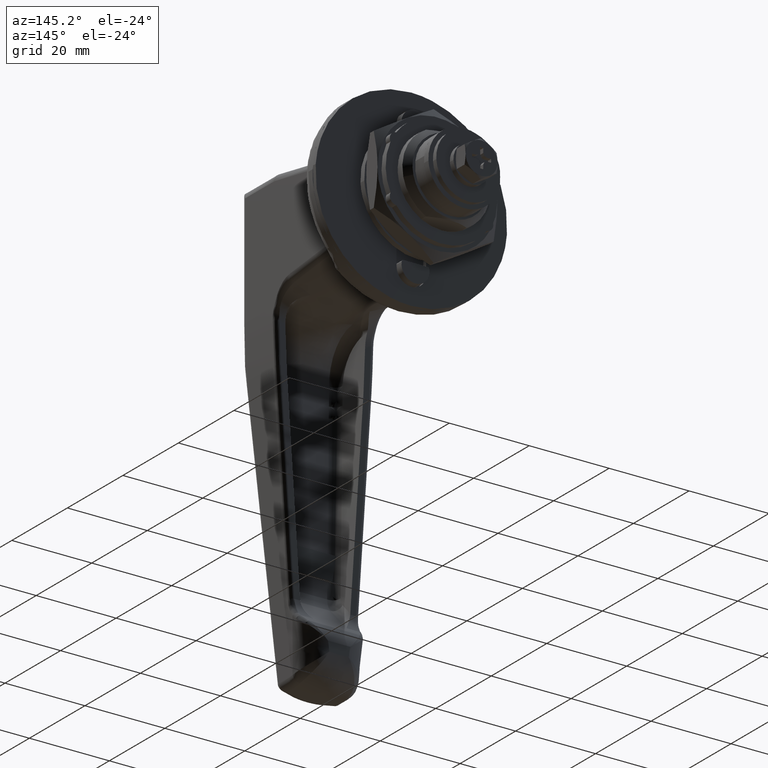
[diagram: clean part render]
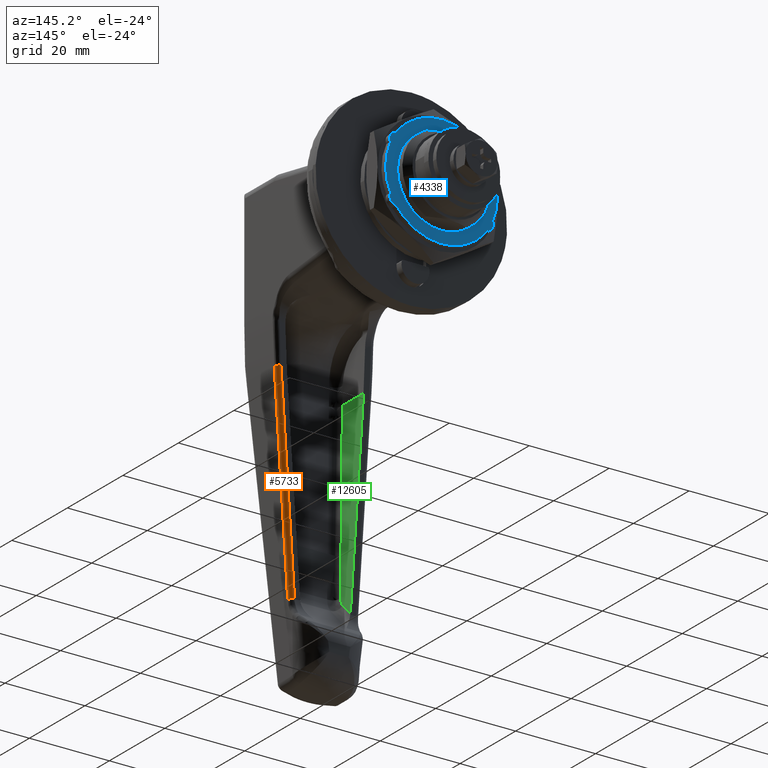
[diagram: same view with three faces highlighted in distinct colors, each labeled with its STEP entity id]
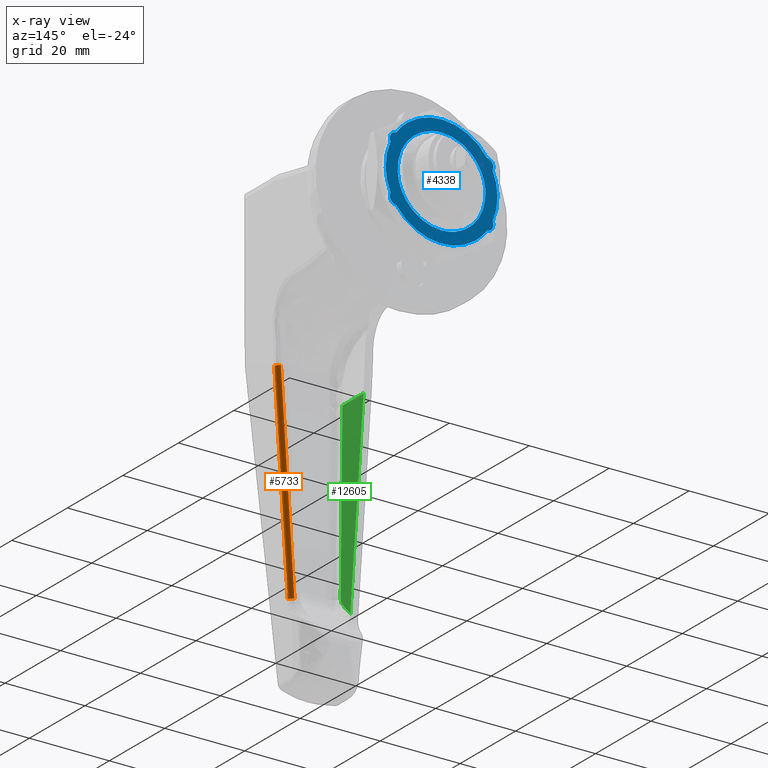
[diagram: x-ray of the same camera — body ghosted, the three highlighted faces saturated]
A machine part, auxiliary view with three faces highlighted in distinct colors.
The next image is the same camera in x-ray (body ghosted, the three faces saturated) — at least one of them is partly hidden behind the body in this view.
Their STEP definitions:

[orange] entity #5733 — the highlighted face is a freeform B-spline surface patch.
#5642=CARTESIAN_POINT('',(-32.0,-12.073825860416800,-28.897928022205701));
#5643=VERTEX_POINT('',#5642);
#5644=CARTESIAN_POINT('',(-31.0,-11.075956731114699,-28.832680794020099));
#5645=VERTEX_POINT('',#5644);
#5646=CARTESIAN_POINT('',(-32.0,-12.073825860416781,-28.897928022205679));
#5647=CARTESIAN_POINT('',(-31.000000000000007,-12.073825860416784,-28.897928022205676));
#5648=CARTESIAN_POINT('',(-31.0,-11.075956731114699,-28.832680794020099));
#5656=(BOUNDED_CURVE()B_SPLINE_CURVE(2,(#5646,#5647,#5648),.UNSPECIFIED.,.F.,.U.)CURVE()GEOMETRIC_REPRESENTATION_ITEM()QUASI_UNIFORM_CURVE()RATIONAL_B_SPLINE_CURVE((1.0,0.707106781186548,1.0))REPRESENTATION_ITEM(''));
#5657=EDGE_CURVE('',#5643,#5645,#5656,.T.);
#5689=CARTESIAN_POINT('',(-32.043619387365332,-12.157358873216159,-27.605815000508532));
#5690=CARTESIAN_POINT('',(-32.043619387365332,-8.606970753906326,-81.904254946856440));
#5691=CARTESIAN_POINT('',(-30.923939205324430,-12.206140995351797,-27.609004695590698));
#5692=CARTESIAN_POINT('',(-30.923939205324430,-8.655752876041969,-81.907444641938611));
#5693=CARTESIAN_POINT('',(-31.002457119729311,-11.090530218580836,-27.536058746286535));
#5694=CARTESIAN_POINT('',(-31.002457119729311,-7.540142099271001,-81.834498692634440));
#5702=(BOUNDED_SURFACE()B_SPLINE_SURFACE(1,2,((#5689,#5691,#5693),(#5690,#5692,#5694)),.UNSPECIFIED.,.F.,.F.,.U.)B_SPLINE_SURFACE_WITH_KNOTS((2,2),(3,3),(0.0,54.414389975491659),(0.0,0.994386907876469),.UNSPECIFIED.)GEOMETRIC_REPRESENTATION_ITEM()RATIONAL_B_SPLINE_SURFACE(((1.0,0.664513792965735,0.996233770027485),(1.0,0.664513792965735,0.996233770027485)))REPRESENTATION_ITEM('')SURFACE());
#5703=CARTESIAN_POINT('',(-32.0,-8.694515336386020,-80.579964853946592));
#5704=VERTEX_POINT('',#5703);
#5705=CARTESIAN_POINT('',(-31.0,-7.696646207083940,-80.514717625761094));
#5706=VERTEX_POINT('',#5705);
#5707=CARTESIAN_POINT('',(-32.0,-8.694515336386015,-80.579964853946663));
#5708=CARTESIAN_POINT('',(-31.000000000000007,-8.694515336386015,-80.579964853946663));
#5709=CARTESIAN_POINT('',(-31.0,-7.696646207083930,-80.514717625761094));
#5717=(BOUNDED_CURVE()B_SPLINE_CURVE(2,(#5707,#5708,#5709),.UNSPECIFIED.,.F.,.U.)CURVE()GEOMETRIC_REPRESENTATION_ITEM()QUASI_UNIFORM_CURVE()RATIONAL_B_SPLINE_CURVE((1.0,0.707106781186548,1.0))REPRESENTATION_ITEM(''));
#5718=EDGE_CURVE('',#5704,#5706,#5717,.T.);
#5719=ORIENTED_EDGE('',*,*,#5718,.T.);
#5720=CARTESIAN_POINT('',(-31.0,-11.075956731114699,-28.832680794020099));
#5721=CARTESIAN_POINT('',(-31.0,-7.696646207083940,-80.514717625761094));
#5722=QUASI_UNIFORM_CURVE('',1,(#5720,#5721),.UNSPECIFIED.,.F.,.U.);
#5723=EDGE_CURVE('',#5645,#5706,#5722,.T.);
#5724=ORIENTED_EDGE('',*,*,#5723,.F.);
#5725=ORIENTED_EDGE('',*,*,#5657,.F.);
#5726=CARTESIAN_POINT('',(-32.0,-8.694515336386020,-80.579964853946592));
#5727=CARTESIAN_POINT('',(-32.0,-12.073825860416800,-28.897928022205701));
#5728=QUASI_UNIFORM_CURVE('',1,(#5726,#5727),.UNSPECIFIED.,.F.,.U.);
#5729=EDGE_CURVE('',#5704,#5643,#5728,.T.);
#5730=ORIENTED_EDGE('',*,*,#5729,.F.);
#5731=EDGE_LOOP('',(#5719,#5724,#5725,#5730));
#5732=FACE_OUTER_BOUND('',#5731,.T.);
#5733=ADVANCED_FACE('',(#5732),#5702,.T.);

[blue] entity #4338 — the highlighted face is a freeform B-spline surface patch.
#3033=CARTESIAN_POINT('',(60.395902999999898,-10.979482782625659,-0.671533935126584));
#3034=VERTEX_POINT('',#3033);
#3040=CARTESIAN_POINT('',(60.395902999999898,0.0,-11.0));
#3041=VERTEX_POINT('',#3040);
#3042=CARTESIAN_POINT('',(60.395902999999898,0.0,-11.0));
#3043=CARTESIAN_POINT('',(60.395902999999912,-10.347766735503505,-11.000000000000002));
#3044=CARTESIAN_POINT('',(60.395902999999905,-10.979482782625665,-0.671533935126584));
#3052=(BOUNDED_CURVE()B_SPLINE_CURVE(2,(#3042,#3043,#3044),.UNSPECIFIED.,.F.,.U.)B_SPLINE_CURVE_WITH_KNOTS((3,3),(0.500000000000000,0.739332962234327),.UNSPECIFIED.)CURVE()GEOMETRIC_REPRESENTATION_ITEM()RATIONAL_B_SPLINE_CURVE((1.0,0.719603993292119,0.976072041656824))REPRESENTATION_ITEM(''));
#3053=EDGE_CURVE('',#3041,#3034,#3052,.T.);
#3055=CARTESIAN_POINT('',(60.395902999999898,10.923104789976360,1.298376581425998));
#3056=VERTEX_POINT('',#3055);
#3057=CARTESIAN_POINT('',(60.395902999999898,10.923104789976360,1.298376581425998));
#3058=CARTESIAN_POINT('',(60.395902999999898,11.000000000000005,0.651465316374798));
#3059=CARTESIAN_POINT('',(60.395902999999898,11.0,0.0));
#3060=CARTESIAN_POINT('',(60.395902999999898,11.0,-11.0));
#3061=CARTESIAN_POINT('',(60.395902999999898,0.0,-11.0));
#3069=(BOUNDED_CURVE()B_SPLINE_CURVE(2,(#3057,#3058,#3059,#3060,#3061),.UNSPECIFIED.,.F.,.U.)B_SPLINE_CURVE_WITH_KNOTS((3,2,3),(0.229562473509404,0.250000000000000,0.500000000000000),.UNSPECIFIED.)CURVE()GEOMETRIC_REPRESENTATION_ITEM()RATIONAL_B_SPLINE_CURVE((0.956026754175655,0.976055948326337,1.0,0.707106781186548,1.0))REPRESENTATION_ITEM(''));
#3070=EDGE_CURVE('',#3056,#3041,#3069,.T.);
#3114=CARTESIAN_POINT('',(60.395902999999898,0.0,11.0));
#3115=VERTEX_POINT('',#3114);
#3116=CARTESIAN_POINT('',(60.395902999999898,0.0,11.0));
#3117=CARTESIAN_POINT('',(60.395902999999905,9.769919785101777,11.0));
#3118=CARTESIAN_POINT('',(60.395902999999898,10.923104789976360,1.298376581425998));
#3126=(BOUNDED_CURVE()B_SPLINE_CURVE(2,(#3116,#3117,#3118),.UNSPECIFIED.,.F.,.U.)B_SPLINE_CURVE_WITH_KNOTS((3,3),(0.0,0.229562473509404),.UNSPECIFIED.)CURVE()GEOMETRIC_REPRESENTATION_ITEM()RATIONAL_B_SPLINE_CURVE((1.0,0.731050832860211,0.956026754175655))REPRESENTATION_ITEM(''));
#3127=EDGE_CURVE('',#3115,#3056,#3126,.T.);
#3129=CARTESIAN_POINT('',(60.395902999999890,-10.979482782625666,-0.671533935126584));
#3130=CARTESIAN_POINT('',(60.395902999999898,-11.000000000000004,-0.336080396528318));
#3131=CARTESIAN_POINT('',(60.395902999999898,-11.0,0.0));
#3132=CARTESIAN_POINT('',(60.395902999999898,-11.0,11.0));
#3133=CARTESIAN_POINT('',(60.395902999999898,0.0,11.0));
#3141=(BOUNDED_CURVE()B_SPLINE_CURVE(2,(#3129,#3130,#3131,#3132,#3133),.UNSPECIFIED.,.F.,.U.)B_SPLINE_CURVE_WITH_KNOTS((3,2,3),(0.739332962234326,0.750000000000000,1.0),.UNSPECIFIED.)CURVE()GEOMETRIC_REPRESENTATION_ITEM()RATIONAL_B_SPLINE_CURVE((0.976072041656822,0.987502787894428,1.0,0.707106781186548,1.0))REPRESENTATION_ITEM(''));
#3142=EDGE_CURVE('',#3034,#3115,#3141,.T.);
#3410=CARTESIAN_POINT('',(60.395902999999898,-12.773809982891500,5.729727047433930));
#3411=VERTEX_POINT('',#3410);
#3417=CARTESIAN_POINT('',(60.395902999999898,-11.348994046675420,8.197580640393969));
#3418=VERTEX_POINT('',#3417);
#3419=CARTESIAN_POINT('',(60.395902999999898,-11.348994046675420,8.197580640393980));
#3420=CARTESIAN_POINT('',(60.395902999999898,-12.269609458662067,8.148412596946514));
#3421=CARTESIAN_POINT('',(60.395902999999898,-12.730573186433530,7.350000000000032));
#3422=CARTESIAN_POINT('',(60.395902999999898,-13.191536914204997,6.551587403053548));
#3423=CARTESIAN_POINT('',(60.395902999999898,-12.773809982891590,5.729727047433887));
#3431=(BOUNDED_CURVE()B_SPLINE_CURVE(2,(#3419,#3420,#3421,#3422,#3423),.UNSPECIFIED.,.F.,.U.)B_SPLINE_CURVE_WITH_KNOTS((3,2,3),(0.0,0.500000000000000,1.0),.UNSPECIFIED.)CURVE()GEOMETRIC_REPRESENTATION_ITEM()RATIONAL_B_SPLINE_CURVE((1.0,0.879054921630884,1.0,0.879054921630884,1.0))REPRESENTATION_ITEM(''));
#3432=EDGE_CURVE('',#3418,#3411,#3431,.T.);
#3457=CARTESIAN_POINT('',(60.395902999999898,-12.773810244207160,-5.729727030582530));
#3458=VERTEX_POINT('',#3457);
#3464=CARTESIAN_POINT('',(60.395902999999898,-12.773809982891500,5.729727047433930));
#3465=CARTESIAN_POINT('',(60.395902999999905,-15.343894784484002,0.000000067032631));
#3466=CARTESIAN_POINT('',(60.395902999999898,-12.773810244207169,-5.729727030582525));
#3474=(BOUNDED_CURVE()B_SPLINE_CURVE(2,(#3464,#3465,#3466),.UNSPECIFIED.,.F.,.U.)CURVE()GEOMETRIC_REPRESENTATION_ITEM()QUASI_UNIFORM_CURVE()RATIONAL_B_SPLINE_CURVE((1.0,0.912415015655414,1.0))REPRESENTATION_ITEM(''));
#3475=EDGE_CURVE('',#3411,#3458,#3474,.T.);
#3496=CARTESIAN_POINT('',(60.395902999999898,-11.348994046675420,-8.197580640393980));
#3497=VERTEX_POINT('',#3496);
#3503=CARTESIAN_POINT('',(60.395902999999898,-12.773810244207160,-5.729727030582530));
#3504=CARTESIAN_POINT('',(60.395902999999898,-13.191536895913377,-6.551587490799718));
#3505=CARTESIAN_POINT('',(60.395902999999898,-12.730573160588470,-7.350000044764986));
#3506=CARTESIAN_POINT('',(60.395902999999898,-12.269609425263557,-8.148412598730255));
#3507=CARTESIAN_POINT('',(60.395902999999898,-11.348994046675420,-8.197580640393980));
#3515=(BOUNDED_CURVE()B_SPLINE_CURVE(2,(#3503,#3504,#3505,#3506,#3507),.UNSPECIFIED.,.F.,.U.)B_SPLINE_CURVE_WITH_KNOTS((3,2,3),(0.0,0.500000000000000,1.0),.UNSPECIFIED.)CURVE()GEOMETRIC_REPRESENTATION_ITEM()RATIONAL_B_SPLINE_CURVE((1.0,0.879054928878454,1.0,0.879054928878454,1.0))REPRESENTATION_ITEM(''));
#3516=EDGE_CURVE('',#3458,#3497,#3515,.T.);
#3537=CARTESIAN_POINT('',(60.395902999999898,11.348994287338440,-8.197580659314040));
#3538=VERTEX_POINT('',#3537);
#3544=CARTESIAN_POINT('',(60.395902999999898,-11.348994046675420,-8.197580640393980));
#3545=CARTESIAN_POINT('',(60.395902999999905,-7.157803374540727,-14.000000032102946));
#3546=CARTESIAN_POINT('',(60.395902999999898,0.000000062790389,-14.0));
#3547=CARTESIAN_POINT('',(60.395902999999905,7.157803500121501,-13.999999967897057));
#3548=CARTESIAN_POINT('',(60.395902999999898,11.348994287338440,-8.197580659314035));
#3556=(BOUNDED_CURVE()B_SPLINE_CURVE(2,(#3544,#3545,#3546,#3547,#3548),.UNSPECIFIED.,.F.,.U.)B_SPLINE_CURVE_WITH_KNOTS((3,2,3),(0.0,0.500000000000000,1.0),.UNSPECIFIED.)CURVE()GEOMETRIC_REPRESENTATION_ITEM()RATIONAL_B_SPLINE_CURVE((1.0,0.890376740290604,1.0,0.890376740290604,1.0))REPRESENTATION_ITEM(''));
#3557=EDGE_CURVE('',#3497,#3538,#3556,.T.);
#3578=CARTESIAN_POINT('',(60.395902999999898,12.773809982891819,-5.729727047433920));
#3579=VERTEX_POINT('',#3578);
#3585=CARTESIAN_POINT('',(60.395902999999898,11.348994287338440,-8.197580659314040));
#3586=CARTESIAN_POINT('',(60.395902999999898,12.269609613398478,-8.148412458716477));
#3587=CARTESIAN_POINT('',(60.395902999999898,12.730573246261550,-7.349999896375232));
#3588=CARTESIAN_POINT('',(60.395902999999898,13.191536879124621,-6.551587334033987));
#3589=CARTESIAN_POINT('',(60.395902999999898,12.773809982891830,-5.729727047433920));
#3597=(BOUNDED_CURVE()B_SPLINE_CURVE(2,(#3585,#3586,#3587,#3588,#3589),.UNSPECIFIED.,.F.,.U.)B_SPLINE_CURVE_WITH_KNOTS((3,2,3),(0.0,0.500000000000000,1.0),.UNSPECIFIED.)CURVE()GEOMETRIC_REPRESENTATION_ITEM()RATIONAL_B_SPLINE_CURVE((1.0,0.879054938408031,1.0,0.879054938408031,1.0))REPRESENTATION_ITEM(''));
#3598=EDGE_CURVE('',#3538,#3579,#3597,.T.);
#3619=CARTESIAN_POINT('',(60.395902999999898,12.773810244207160,5.729727030582550));
#3620=VERTEX_POINT('',#3619);
#3626=CARTESIAN_POINT('',(60.395902999999898,12.773809982891819,-5.729727047433920));
#3627=CARTESIAN_POINT('',(60.395902999999898,15.343894784483973,-0.000000067032536));
#3628=CARTESIAN_POINT('',(60.395902999999898,12.773810244207160,5.729727030582547));
#3636=(BOUNDED_CURVE()B_SPLINE_CURVE(2,(#3626,#3627,#3628),.UNSPECIFIED.,.F.,.U.)CURVE()GEOMETRIC_REPRESENTATION_ITEM()QUASI_UNIFORM_CURVE()RATIONAL_B_SPLINE_CURVE((1.0,0.912415015655416,1.0))REPRESENTATION_ITEM(''));
#3637=EDGE_CURVE('',#3579,#3620,#3636,.T.);
#3658=CARTESIAN_POINT('',(60.395902999999898,11.348994046675760,8.197580640393980));
#3659=VERTEX_POINT('',#3658);
#3665=CARTESIAN_POINT('',(60.395902999999898,12.773810244207160,5.729727030582550));
#3666=CARTESIAN_POINT('',(60.395902999999898,13.191536895913595,6.551587490799612));
#3667=CARTESIAN_POINT('',(60.395902999999898,12.730573160588740,7.350000044764898));
#3668=CARTESIAN_POINT('',(60.395902999999898,12.269609425263893,8.148412598730184));
#3669=CARTESIAN_POINT('',(60.395902999999898,11.348994046675760,8.197580640393973));
#3677=(BOUNDED_CURVE()B_SPLINE_CURVE(2,(#3665,#3666,#3667,#3668,#3669),.UNSPECIFIED.,.F.,.U.)B_SPLINE_CURVE_WITH_KNOTS((3,2,3),(0.0,0.500000000000000,1.0),.UNSPECIFIED.)CURVE()GEOMETRIC_REPRESENTATION_ITEM()RATIONAL_B_SPLINE_CURVE((1.0,0.879054928878457,1.0,0.879054928878457,1.0))REPRESENTATION_ITEM(''));
#3678=EDGE_CURVE('',#3620,#3659,#3677,.T.);
#3700=CARTESIAN_POINT('',(60.395902999999898,11.348994046675760,8.197580640393980));
#3701=CARTESIAN_POINT('',(60.395902999999905,7.157803397729381,14.000000000000005));
#3702=CARTESIAN_POINT('',(60.395902999999898,0.0,14.0));
#3703=CARTESIAN_POINT('',(60.395902999999905,-7.157803397729263,13.999999999999993));
#3704=CARTESIAN_POINT('',(60.395902999999898,-11.348994046675420,8.197580640393969));
#3712=(BOUNDED_CURVE()B_SPLINE_CURVE(2,(#3700,#3701,#3702,#3703,#3704),.UNSPECIFIED.,.F.,.U.)B_SPLINE_CURVE_WITH_KNOTS((3,2,3),(0.0,0.500000000000000,1.0),.UNSPECIFIED.)CURVE()GEOMETRIC_REPRESENTATION_ITEM()RATIONAL_B_SPLINE_CURVE((1.0,0.890376741311448,1.0,0.890376741311448,1.0))REPRESENTATION_ITEM(''));
#3713=EDGE_CURVE('',#3659,#3418,#3712,.T.);
#4317=CARTESIAN_POINT('',(60.395902999999898,-15.398600147824890,15.398599945730460));
#4318=CARTESIAN_POINT('',(60.395902999999890,-15.398600147824890,-15.398600696748970));
#4319=CARTESIAN_POINT('',(60.395902999999898,15.398600648503971,15.398599945730460));
#4320=CARTESIAN_POINT('',(60.395902999999890,15.398600648503971,-15.398600696748970));
#4321=B_SPLINE_SURFACE_WITH_KNOTS('',1,1,((#4317,#4319),(#4318,#4320)),.UNSPECIFIED.,.F.,.F.,.U.,(2,2),(2,2),(0.0,30.797200642479421),(0.0,30.797200796328859),.UNSPECIFIED.);
#4322=ORIENTED_EDGE('',*,*,#3713,.T.);
#4323=ORIENTED_EDGE('',*,*,#3432,.T.);
#4324=ORIENTED_EDGE('',*,*,#3475,.T.);
#4325=ORIENTED_EDGE('',*,*,#3516,.T.);
#4326=ORIENTED_EDGE('',*,*,#3557,.T.);
#4327=ORIENTED_EDGE('',*,*,#3598,.T.);
#4328=ORIENTED_EDGE('',*,*,#3637,.T.);
#4329=ORIENTED_EDGE('',*,*,#3678,.T.);
#4330=EDGE_LOOP('',(#4322,#4323,#4324,#4325,#4326,#4327,#4328,#4329));
#4331=FACE_OUTER_BOUND('',#4330,.T.);
#4332=ORIENTED_EDGE('',*,*,#3053,.T.);
#4333=ORIENTED_EDGE('',*,*,#3142,.T.);
#4334=ORIENTED_EDGE('',*,*,#3127,.T.);
#4335=ORIENTED_EDGE('',*,*,#3070,.T.);
#4336=EDGE_LOOP('',(#4332,#4333,#4334,#4335));
#4337=FACE_BOUND('',#4336,.T.);
#4338=ADVANCED_FACE('',(#4331,#4337),#4321,.T.);

[green] entity #12605 — the highlighted face is a freeform B-spline surface patch.
#11274=CARTESIAN_POINT('',(-34.968443619576952,6.608361053234850,-75.320621912428194));
#11275=VERTEX_POINT('',#11274);
#11304=CARTESIAN_POINT('',(-34.099314510103753,6.485295066253920,-77.202751811248191));
#11305=VERTEX_POINT('',#11304);
#11319=CARTESIAN_POINT('',(-34.099314510103738,6.485295066253928,-77.202751811248191));
#11320=CARTESIAN_POINT('',(-34.880374808681673,6.536365907111611,-76.421691512670137));
#11321=CARTESIAN_POINT('',(-34.968443619576938,6.608361053234853,-75.320621912428194));
#11329=(BOUNDED_CURVE()B_SPLINE_CURVE(2,(#11319,#11320,#11321),.UNSPECIFIED.,.F.,.U.)CURVE()GEOMETRIC_REPRESENTATION_ITEM()QUASI_UNIFORM_CURVE()RATIONAL_B_SPLINE_CURVE((1.0,0.938411803039732,1.0))REPRESENTATION_ITEM(''));
#11330=EDGE_CURVE('',#11305,#11275,#11329,.T.);
#11357=CARTESIAN_POINT('',(-38.582344357987701,9.579153000000000,-29.886326999999849));
#11358=VERTEX_POINT('',#11357);
#11387=CARTESIAN_POINT('',(-38.379214499579902,9.396623448338460,-32.677872698598698));
#11388=VERTEX_POINT('',#11387);
#11402=CARTESIAN_POINT('',(-38.379214499579902,9.396623448338460,-32.677872698598698));
#11403=CARTESIAN_POINT('',(-38.490796777810395,9.487840562379297,-31.282828772718617));
#11404=CARTESIAN_POINT('',(-38.582344357987701,9.579153000000000,-29.886326999999849));
#11412=(BOUNDED_CURVE()B_SPLINE_CURVE(2,(#11402,#11403,#11404),.UNSPECIFIED.,.F.,.U.)CURVE()GEOMETRIC_REPRESENTATION_ITEM()QUASI_UNIFORM_CURVE()RATIONAL_B_SPLINE_CURVE((1.0,0.999974246912204,1.0))REPRESENTATION_ITEM(''));
#11413=EDGE_CURVE('',#11388,#11358,#11412,.T.);
#12504=CARTESIAN_POINT('',(-31.0,6.282641572789210,-80.302066321352299));
#12505=VERTEX_POINT('',#12504);
#12506=CARTESIAN_POINT('',(-31.0,6.282641572789210,-80.302066321352299));
#12507=CARTESIAN_POINT('',(-34.099314510103753,6.485295066253920,-77.202751811248191));
#12508=QUASI_UNIFORM_CURVE('',1,(#12506,#12507),.UNSPECIFIED.,.F.,.U.);
#12509=EDGE_CURVE('',#12505,#11305,#12508,.T.);
#12578=CARTESIAN_POINT('',(-38.961082159262638,6.117981061783788,-82.820328909749705));
#12579=CARTESIAN_POINT('',(-38.961082159262638,9.743813569951646,-27.368063510098761));
#12580=CARTESIAN_POINT('',(-30.621261724184969,6.117981061783788,-82.820328909749719));
#12581=CARTESIAN_POINT('',(-30.621261724184969,9.743813569951646,-27.368063510098761));
#12582=B_SPLINE_SURFACE_WITH_KNOTS('',1,1,((#12578,#12580),(#12579,#12581)),.UNSPECIFIED.,.F.,.F.,.U.,(2,2),(2,2),(0.0,55.570679313200891),(0.0,8.339820435077666),.UNSPECIFIED.);
#12583=CARTESIAN_POINT('',(-31.0,9.579153000000000,-29.886326999999849));
#12584=VERTEX_POINT('',#12583);
#12585=CARTESIAN_POINT('',(-38.582344357987701,9.579153000000000,-29.886326999999849));
#12586=CARTESIAN_POINT('',(-31.0,9.579153000000000,-29.886326999999849));
#12587=QUASI_UNIFORM_CURVE('',1,(#12585,#12586),.UNSPECIFIED.,.F.,.U.);
#12588=EDGE_CURVE('',#11358,#12584,#12587,.T.);
#12589=ORIENTED_EDGE('',*,*,#12588,.F.);
#12590=ORIENTED_EDGE('',*,*,#11413,.F.);
#12591=CARTESIAN_POINT('',(-34.968443619576952,6.608361053234850,-75.320621912428194));
#12592=CARTESIAN_POINT('',(-38.379214499579902,9.396623448338460,-32.677872698598698));
#12593=QUASI_UNIFORM_CURVE('',1,(#12591,#12592),.UNSPECIFIED.,.F.,.U.);
#12594=EDGE_CURVE('',#11275,#11388,#12593,.T.);
#12595=ORIENTED_EDGE('',*,*,#12594,.F.);
#12596=ORIENTED_EDGE('',*,*,#11330,.F.);
#12597=ORIENTED_EDGE('',*,*,#12509,.F.);
#12598=CARTESIAN_POINT('',(-31.0,9.579153000000000,-29.886326999999849));
#12599=CARTESIAN_POINT('',(-31.0,6.282641572789210,-80.302066321352299));
#12600=QUASI_UNIFORM_CURVE('',1,(#12598,#12599),.UNSPECIFIED.,.F.,.U.);
#12601=EDGE_CURVE('',#12584,#12505,#12600,.T.);
#12602=ORIENTED_EDGE('',*,*,#12601,.F.);
#12603=EDGE_LOOP('',(#12589,#12590,#12595,#12596,#12597,#12602));
#12604=FACE_OUTER_BOUND('',#12603,.T.);
#12605=ADVANCED_FACE('',(#12604),#12582,.F.);